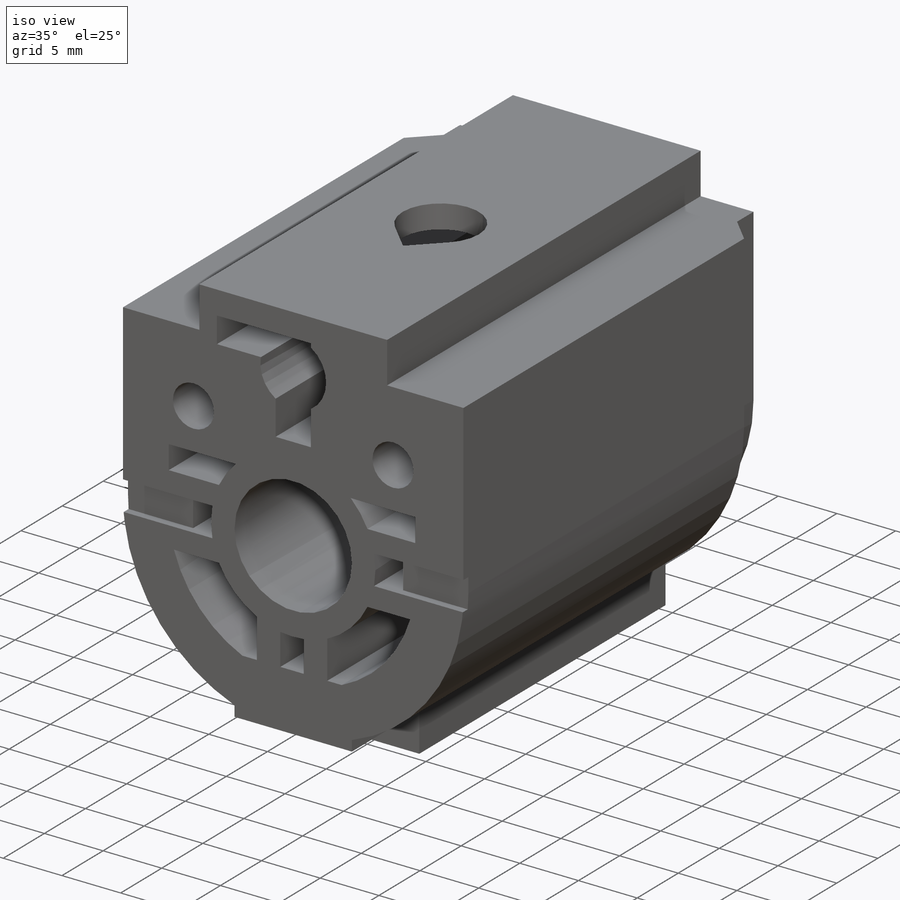
[diagram: iso view]
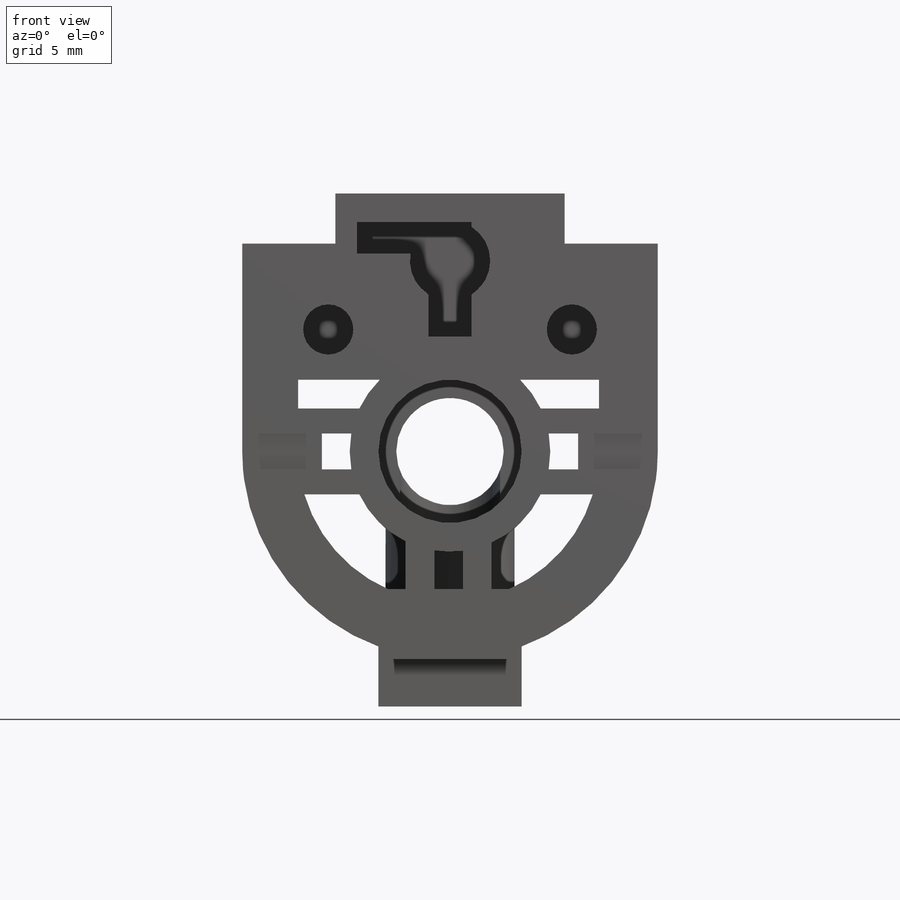
[diagram: front view]
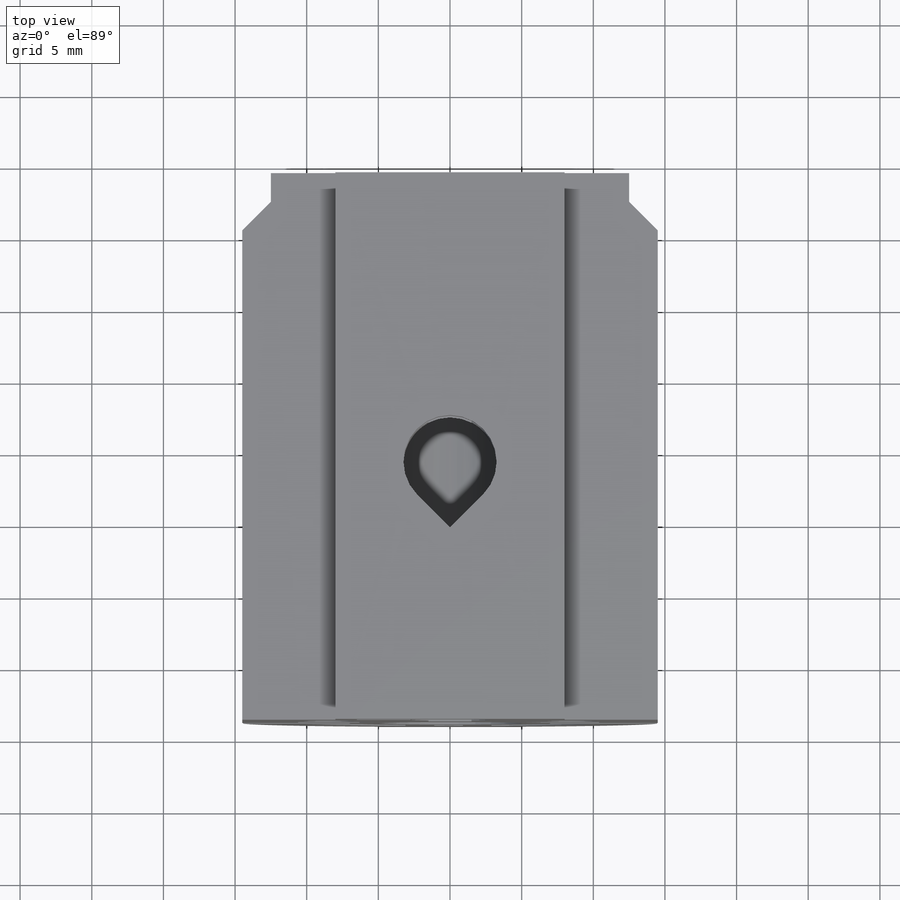
[diagram: top view]
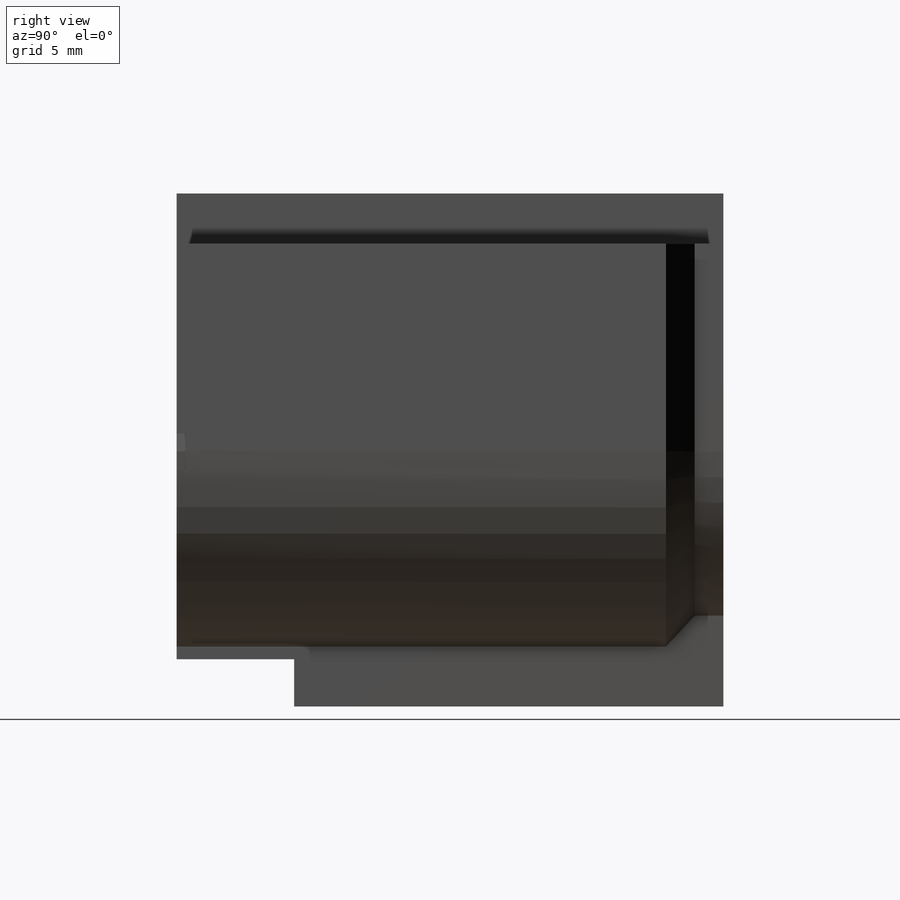
[diagram: right view]
SOLIDWORKS PART (.sldprt)
format: sldprt  version: not decoded by parser v0  size: 930,816 bytes
history: native  units: mm
features: sketch x28, cut_extrude x19, extrude x9, chamfer x5, material x1, fillet x1 (+12 scaffold rows collapsed)
feature tree (75):
  scaffold x12  (default folders/planes/origin — collapsed)
  material  "Material <not specified>"
  sketch  "Sketch1"  dims[D1=10.0mm]
  extrude  "Boss-Extrude1"  Depth=30mm
  sketch  "Sketch2"  dims[D1=~2.235533mm]
  cut_extrude  "Cut-Extrude1"  Depth=30mm
  sketch  "Sketch3"  dims[D1=7.0mm]
  cut_extrude  "Cut-Extrude2"  Depth=30mm
  sketch  "Sketch4"  dims[D1=~7.32256mm]
  cut_extrude  "Cut-Extrude3"  Depth=13mm
  chamfer  "Chamfer1"  Distance=1mm Angle=45deg
  sketch  "Sketch5"  dims[D1=16.0mm]
  extrude  "Boss-Extrude2"  [1 undecoded]
  sketch  "Sketch6"  dims[D1=0.0mm]
  extrude  "Boss-Extrude3"  Depth=9mm
  sketch  "Sketch7"  dims[D1=21.05mm]
  sketch  "Sketch8"  dims[c1.D1=~4.654622mm c1.D6=~2.421516mm c2.D1=3.0mm c2.D2=2.0mm c2.D3=8.0mm c2.D4=2.2mm c2.D5=6.5mm c3.D1=2.0mm]
  cut_extrude  "Cut-Extrude5"  Depth=37mm
  sketch  "Sketch13"  dims[D1=2.0mm]
  cut_extrude  "Cut-Extrude9"  Depth=2.85mm
  sketch  "Sketch14"  dims[c1.D1=~3.38782mm c1.D5=3.5mm c2.D1=6.0mm c2.D2=6.0mm c2.D3=6.0mm c2.D4=6.0mm]
  cut_extrude  "Cut-Extrude10"  Depth=33mm
  chamfer  "Chamfer3"  Distance=2mm Angle=60deg
  chamfer  "Chamfer4"  Distance=2mm Angle=45deg
  sketch  "Sketch17"  dims[c1.D1=2.0mm c1.D2=2.0mm c2.D1=2.0mm]
  cut_extrude  "Cut-Extrude11"  [1 undecoded]
  sketch  "Sketch18"
  extrude  "Boss-Extrude4"  [1 undecoded]
  sketch  "Sketch19"  dims[D1=0.0mm]
  extrude  "Boss-Extrude5"  [1 undecoded]
  sketch  "Sketch20"  dims[D1=2.75mm]
  cut_extrude  "Cut-Extrude12"  [1 undecoded]
  sketch  "Sketch21"  dims[D1=6.0mm D2=2.0mm]
  extrude  "Boss-Extrude9"  [1 undecoded]
  sketch  "Sketch23"
  cut_extrude  "Cut-Extrude14"  Depth=0.6mm
  sketch  "Sketch24"
  cut_extrude  "Cut-Extrude15"  Depth=5mm
  sketch  "Sketch26"  dims[D1=2.5mm]
  extrude  "Boss-Extrude11"  [1 undecoded]
  chamfer  "Chamfer7"  Distance=2mm Angle=45deg
  sketch  "Sketch28"  dims[D1=22.0mm]
  cut_extrude  "Cut-Extrude16"  Depth=20mm
  sketch  "Sketch29"
  cut_extrude  "Cut-Extrude17"  Depth=0.85mm
  sketch  "Sketch30"  dims[D3=8.2mm D1=0.0mm D2=0.0mm]
  extrude  "Boss-Extrude12"  Depth=3.3mm
  chamfer  "Chamfer8"  Distance=1mm Angle=45deg
  sketch  "Sketch31"  dims[D1=~3.874971mm]
  cut_extrude  "Cut-Extrude18"  [1 undecoded]
  sketch  "Sketch32"  dims[D1=2.5mm]
  cut_extrude  "Cut-Extrude19"  [1 undecoded]
  sketch  "Sketch33"
  cut_extrude  "Cut-Extrude21"  Depth=7mm
  sketch  "Sketch34"
  extrude  "Boss-Extrude13"  Depth=10mm
  sketch  "Sketch35"
  cut_extrude  "Cut-Extrude22"  [1 undecoded]
  cut_extrude  "Cut-Extrude23"  Depth=15mm
  sketch  "Sketch37"
  cut_extrude  "Cut-Extrude27"  Depth=3mm
  sketch  "Sketch38"  dims[D1=7.0mm]
  cut_extrude  "Cut-Extrude28"  Depth=3mm
  fillet  "Fillet1"  Radius=2mm
decode coverage: 44 of 62 modeling features carry decoded parameters
note: ~ marks probable driven/reference dimensions
note: 10 parameter values undecoded
summary: no parameter record found for 10 features
note: suppression state not decoded; provenance and decode notes live in map.json
